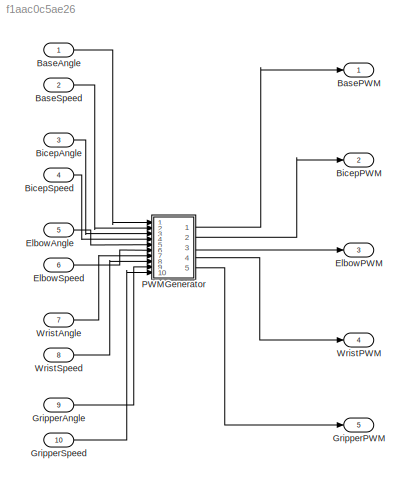
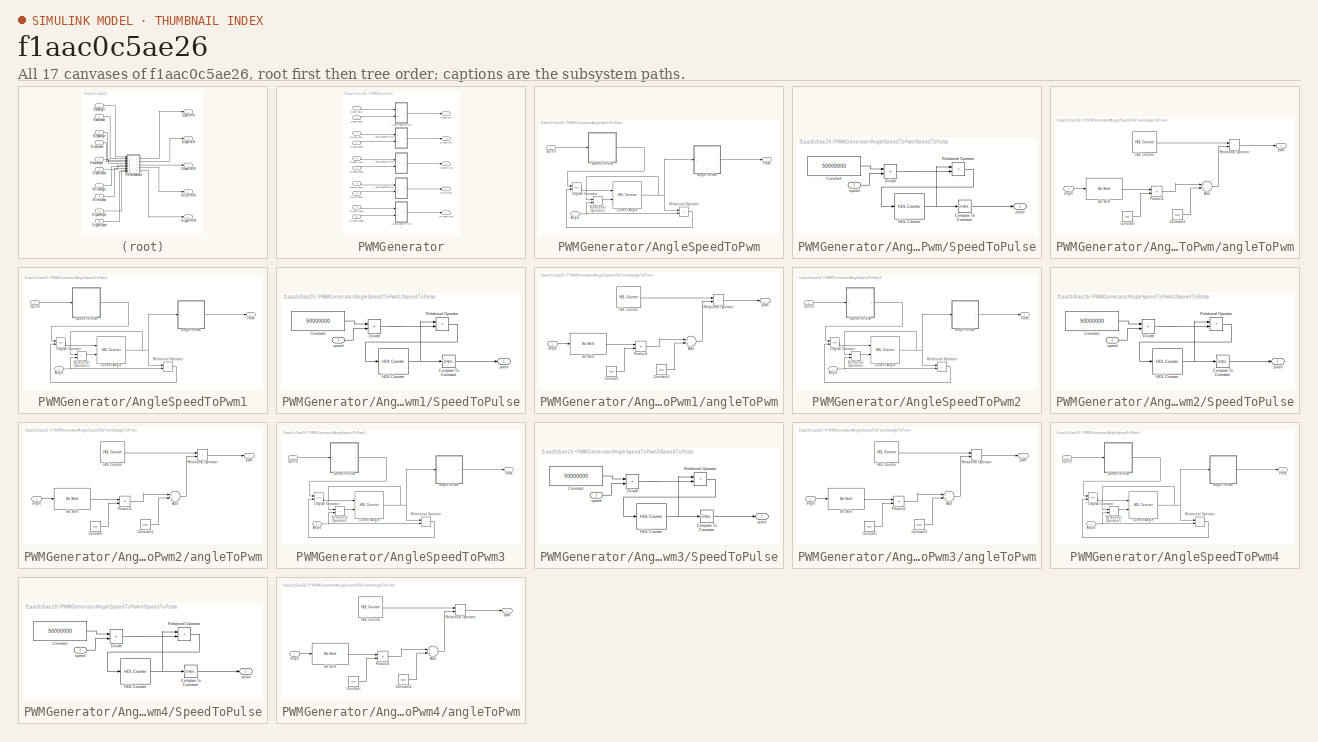
[diagram: thumbnail index - all 17 canvases of the model, root first then tree order]
MODEL slx_f1aac0c5ae26
KIND model
BLOCK [Inport] BaseAngle
  IconDisplay = Port number
  OutDataTypeStr = uint8
  SampleTime = 1
BLOCK [Outport] BasePWM
  IconDisplay = Port number
BLOCK [Inport] BaseSpeed
  IconDisplay = Port number
  OutDataTypeStr = uint8
  Port = 2
  SampleTime = 1
BLOCK [Inport] BicepAngle
  IconDisplay = Port number
  OutDataTypeStr = uint8
  Port = 3
  SampleTime = 1
BLOCK [Outport] BicepPWM
  IconDisplay = Port number
  Port = 2
BLOCK [Inport] BicepSpeed
  IconDisplay = Port number
  OutDataTypeStr = uint8
  Port = 4
  SampleTime = 1
BLOCK [Inport] ElbowAngle
  IconDisplay = Port number
  OutDataTypeStr = uint8
  Port = 5
  SampleTime = 1
BLOCK [Outport] ElbowPWM
  IconDisplay = Port number
  Port = 3
BLOCK [Inport] ElbowSpeed
  IconDisplay = Port number
  OutDataTypeStr = uint8
  Port = 6
  SampleTime = 1
BLOCK [Inport] GripperAngle
  IconDisplay = Port number
  OutDataTypeStr = uint8
  Port = 9
  SampleTime = 1
BLOCK [Outport] GripperPWM
  IconDisplay = Port number
  Port = 5
BLOCK [Inport] GripperSpeed
  IconDisplay = Port number
  OutDataTypeStr = uint8
  Port = 10
  SampleTime = 1
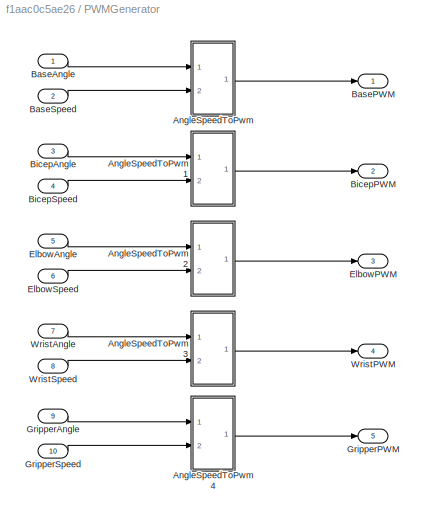
BLOCK [SubSystem] PWMGenerator
  Ports = [10, 5]
  RequestExecContextInheritance = off
  SystemSampleTime = 1
  TreatAsAtomicUnit = on
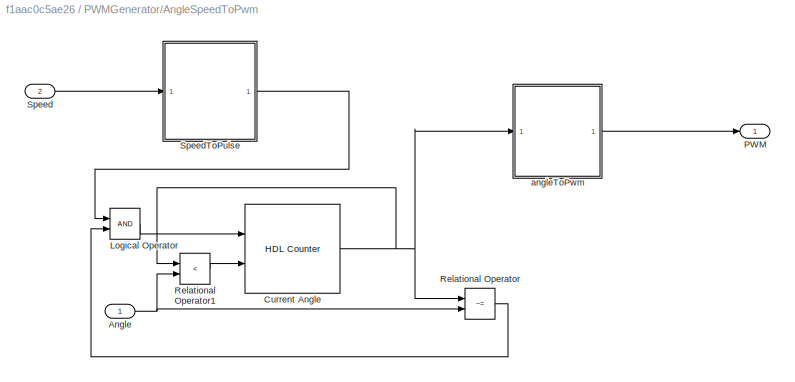
BLOCK [SubSystem] PWMGenerator/AngleSpeedToPwm
  Ports = [2, 1]
  RequestExecContextInheritance = off
BLOCK [Inport] PWMGenerator/AngleSpeedToPwm/Angle
  IconDisplay = Port number
  OutDataTypeStr = uint8
  SampleTime = 1
BLOCK [Reference] PWMGenerator/AngleSpeedToPwm/Current Angle  REF=hdlsllib/HDL Operations/HDL Counter
  CountDataType = Unsigned
  CountDirPort = on
  CountEnbPort = on
  CountFracLen = 0
  CountFrom = 0
  CountFromType = Specify
  CountInit = 90
  CountLoadPort = off
  CountMax = 180
  CountResetPort = off
  CountSampTime = 1
  CountStep = 1
  CountType = Count limited
  CountWordLen = 8
  Ports = [2, 1]
  SourceBlock = hdlsllib/HDL Operations/HDL Counter
  SourceType = HDL Counter
BLOCK [Logic] PWMGenerator/AngleSpeedToPwm/Logical Operator
  AllPortsSameDT = off
  OutDataTypeStr = boolean
  Ports = [2, 1]
  SampleTime = 1
BLOCK [Outport] PWMGenerator/AngleSpeedToPwm/PWM
  IconDisplay = Port number
  OutDataTypeStr = boolean
  SampleTime = 1
BLOCK [RelationalOperator] PWMGenerator/AngleSpeedToPwm/Relational Operator
  InputSameDT = off
  Operator = ~=
  OutDataTypeStr = boolean
  Ports = [2, 1]
  SampleTime = 1
BLOCK [RelationalOperator] PWMGenerator/AngleSpeedToPwm/Relational Operator1
  InputSameDT = off
  Operator = <
  OutDataTypeStr = boolean
  Ports = [2, 1]
  SampleTime = 1
BLOCK [Inport] PWMGenerator/AngleSpeedToPwm/Speed
  IconDisplay = Port number
  OutDataTypeStr = uint8
  Port = 2
  SampleTime = 1
BLOCK [SubSystem] PWMGenerator/AngleSpeedToPwm/SpeedToPulse
  Ports = [1, 1]
  RequestExecContextInheritance = off
BLOCK [Reference] PWMGenerator/AngleSpeedToPwm/SpeedToPulse/Compare To Constant  REF=simulink/Logic and Bit
Operations/Compare
To Constant
  OutDataTypeStr = boolean
  Ports = [1, 1]
  SourceBlock = simulink/Logic and Bit\nOperations/Compare\nTo Constant
  SourceType = Compare To Constant
  ZeroCross = on
  const = 0
  relop = ==
BLOCK [Constant] PWMGenerator/AngleSpeedToPwm/SpeedToPulse/Constant
  OutDataTypeStr = uint32
  SampleTime = 1
  Value = 50000000
BLOCK [Product] PWMGenerator/AngleSpeedToPwm/SpeedToPulse/Divide
  InputSameDT = off
  Inputs = */
  OutDataTypeStr = Inherit: Inherit via internal rule
  Ports = [2, 1]
  SampleTime = 1
BLOCK [Reference] PWMGenerator/AngleSpeedToPwm/SpeedToPulse/HDL Counter  REF=hdlsllib/HDL Operations/HDL Counter
  CountDataType = Unsigned
  CountDirPort = off
  CountEnbPort = off
  CountFracLen = 0
  CountFrom = 0
  CountFromType = Initial value
  CountInit = 0
  CountLoadPort = off
  CountMax = 50000000
  CountResetPort = on
  CountSampTime = 1
  CountStep = 1
  CountType = Count limited
  CountWordLen = 32
  Ports = [1, 1]
  SourceBlock = hdlsllib/HDL Operations/HDL Counter
  SourceType = HDL Counter
BLOCK [RelationalOperator] PWMGenerator/AngleSpeedToPwm/SpeedToPulse/Relational Operator
  InputSameDT = off
  Operator = >
  OutDataTypeStr = boolean
  Ports = [2, 1]
  SampleTime = 1
BLOCK [Outport] PWMGenerator/AngleSpeedToPwm/SpeedToPulse/pulse
  IconDisplay = Port number
  SampleTime = 1
BLOCK [Inport] PWMGenerator/AngleSpeedToPwm/SpeedToPulse/speed
  IconDisplay = Port number
  OutDataTypeStr = uint8
  SampleTime = 1
BLOCK [SubSystem] PWMGenerator/AngleSpeedToPwm/angleToPwm
  Ports = [1, 1]
  RequestExecContextInheritance = off
BLOCK [Sum] PWMGenerator/AngleSpeedToPwm/angleToPwm/Add
  InputSameDT = off
  OutDataTypeStr = uint32
  Ports = [2, 1]
  RndMeth = Zero
  SampleTime = 1
BLOCK [Reference] PWMGenerator/AngleSpeedToPwm/angleToPwm/Bit Shift  REF=hdlsllib/HDL Operations/Bit Shift
  N = 1
  Ports = [1, 1]
  SourceBlock = hdlsllib/HDL Operations/Bit Shift
  SourceType = Bit Shift
  mode = Shift Right Logical
BLOCK [Constant] PWMGenerator/AngleSpeedToPwm/angleToPwm/Constant
  OutDataTypeStr = uint32
  SampleTime = 1
  Value = 1000
BLOCK [Constant] PWMGenerator/AngleSpeedToPwm/angleToPwm/Constant1
  OutDataTypeStr = uint32
  SampleTime = 1
  Value = 30000
BLOCK [Reference] PWMGenerator/AngleSpeedToPwm/angleToPwm/HDL Counter  REF=hdlsllib/HDL Operations/HDL Counter
  CountDataType = Unsigned
  CountDirPort = off
  CountEnbPort = off
  CountFracLen = 0
  CountFrom = 0
  CountFromType = Initial value
  CountInit = 0
  CountLoadPort = off
  CountMax = 1000000
  CountResetPort = off
  CountSampTime = 1
  CountStep = 1
  CountType = Count limited
  CountWordLen = 32
  Ports = [0, 1]
  SourceBlock = hdlsllib/HDL Operations/HDL Counter
  SourceType = HDL Counter
BLOCK [Product] PWMGenerator/AngleSpeedToPwm/angleToPwm/Product1
  InputSameDT = off
  OutDataTypeStr = uint32
  Ports = [2, 1]
  SampleTime = 1
BLOCK [RelationalOperator] PWMGenerator/AngleSpeedToPwm/angleToPwm/Relational Operator
  InputSameDT = off
  Operator = <
  OutDataTypeStr = boolean
  Ports = [2, 1]
  SampleTime = 1
BLOCK [Inport] PWMGenerator/AngleSpeedToPwm/angleToPwm/angle
  IconDisplay = Port number
BLOCK [Outport] PWMGenerator/AngleSpeedToPwm/angleToPwm/pwm
  IconDisplay = Port number
  OutDataTypeStr = boolean
  SampleTime = 1
BLOCK [SubSystem] PWMGenerator/AngleSpeedToPwm1
  Ports = [2, 1]
  RequestExecContextInheritance = off
BLOCK [Inport] PWMGenerator/AngleSpeedToPwm1/Angle
  IconDisplay = Port number
  OutDataTypeStr = uint8
  SampleTime = 1
BLOCK [Reference] PWMGenerator/AngleSpeedToPwm1/Current Angle  REF=hdlsllib/HDL Operations/HDL Counter
  CountDataType = Unsigned
  CountDirPort = on
  CountEnbPort = on
  CountFracLen = 0
  CountFrom = 0
  CountFromType = Specify
  CountInit = 90
  CountLoadPort = off
  CountMax = 180
  CountResetPort = off
  CountSampTime = 1
  CountStep = 1
  CountType = Count limited
  CountWordLen = 8
  Ports = [2, 1]
  SourceBlock = hdlsllib/HDL Operations/HDL Counter
  SourceType = HDL Counter
BLOCK [Logic] PWMGenerator/AngleSpeedToPwm1/Logical Operator
  AllPortsSameDT = off
  OutDataTypeStr = boolean
  Ports = [2, 1]
  SampleTime = 1
BLOCK [Outport] PWMGenerator/AngleSpeedToPwm1/PWM
  IconDisplay = Port number
  OutDataTypeStr = boolean
  SampleTime = 1
BLOCK [RelationalOperator] PWMGenerator/AngleSpeedToPwm1/Relational Operator
  InputSameDT = off
  Operator = ~=
  OutDataTypeStr = boolean
  Ports = [2, 1]
  SampleTime = 1
BLOCK [RelationalOperator] PWMGenerator/AngleSpeedToPwm1/Relational Operator1
  InputSameDT = off
  Operator = <
  OutDataTypeStr = boolean
  Ports = [2, 1]
  SampleTime = 1
BLOCK [Inport] PWMGenerator/AngleSpeedToPwm1/Speed
  IconDisplay = Port number
  OutDataTypeStr = uint8
  Port = 2
  SampleTime = 1
BLOCK [SubSystem] PWMGenerator/AngleSpeedToPwm1/SpeedToPulse
  Ports = [1, 1]
  RequestExecContextInheritance = off
BLOCK [Reference] PWMGenerator/AngleSpeedToPwm1/SpeedToPulse/Compare To Constant  REF=simulink/Logic and Bit
Operations/Compare
To Constant
  OutDataTypeStr = boolean
  Ports = [1, 1]
  SourceBlock = simulink/Logic and Bit\nOperations/Compare\nTo Constant
  SourceType = Compare To Constant
  ZeroCross = on
  const = 0
  relop = ==
BLOCK [Constant] PWMGenerator/AngleSpeedToPwm1/SpeedToPulse/Constant
  OutDataTypeStr = uint32
  SampleTime = 1
  Value = 50000000
BLOCK [Product] PWMGenerator/AngleSpeedToPwm1/SpeedToPulse/Divide
  InputSameDT = off
  Inputs = */
  OutDataTypeStr = Inherit: Inherit via internal rule
  Ports = [2, 1]
  SampleTime = 1
BLOCK [Reference] PWMGenerator/AngleSpeedToPwm1/SpeedToPulse/HDL Counter  REF=hdlsllib/HDL Operations/HDL Counter
  CountDataType = Unsigned
  CountDirPort = off
  CountEnbPort = off
  CountFracLen = 0
  CountFrom = 0
  CountFromType = Initial value
  CountInit = 0
  CountLoadPort = off
  CountMax = 50000000
  CountResetPort = on
  CountSampTime = 1
  CountStep = 1
  CountType = Count limited
  CountWordLen = 32
  Ports = [1, 1]
  SourceBlock = hdlsllib/HDL Operations/HDL Counter
  SourceType = HDL Counter
BLOCK [RelationalOperator] PWMGenerator/AngleSpeedToPwm1/SpeedToPulse/Relational Operator
  InputSameDT = off
  Operator = >
  OutDataTypeStr = boolean
  Ports = [2, 1]
  SampleTime = 1
BLOCK [Outport] PWMGenerator/AngleSpeedToPwm1/SpeedToPulse/pulse
  IconDisplay = Port number
  SampleTime = 1
BLOCK [Inport] PWMGenerator/AngleSpeedToPwm1/SpeedToPulse/speed
  IconDisplay = Port number
  OutDataTypeStr = uint8
  SampleTime = 1
BLOCK [SubSystem] PWMGenerator/AngleSpeedToPwm1/angleToPwm
  Ports = [1, 1]
  RequestExecContextInheritance = off
BLOCK [Sum] PWMGenerator/AngleSpeedToPwm1/angleToPwm/Add
  InputSameDT = off
  OutDataTypeStr = uint32
  Ports = [2, 1]
  RndMeth = Zero
  SampleTime = 1
BLOCK [Reference] PWMGenerator/AngleSpeedToPwm1/angleToPwm/Bit Shift  REF=hdlsllib/HDL Operations/Bit Shift
  N = 1
  Ports = [1, 1]
  SourceBlock = hdlsllib/HDL Operations/Bit Shift
  SourceType = Bit Shift
  mode = Shift Right Logical
BLOCK [Constant] PWMGenerator/AngleSpeedToPwm1/angleToPwm/Constant
  OutDataTypeStr = uint32
  SampleTime = 1
  Value = 1000
BLOCK [Constant] PWMGenerator/AngleSpeedToPwm1/angleToPwm/Constant1
  OutDataTypeStr = uint32
  SampleTime = 1
  Value = 30000
BLOCK [Reference] PWMGenerator/AngleSpeedToPwm1/angleToPwm/HDL Counter  REF=hdlsllib/HDL Operations/HDL Counter
  CountDataType = Unsigned
  CountDirPort = off
  CountEnbPort = off
  CountFracLen = 0
  CountFrom = 0
  CountFromType = Initial value
  CountInit = 0
  CountLoadPort = off
  CountMax = 1000000
  CountResetPort = off
  CountSampTime = 1
  CountStep = 1
  CountType = Count limited
  CountWordLen = 32
  Ports = [0, 1]
  SourceBlock = hdlsllib/HDL Operations/HDL Counter
  SourceType = HDL Counter
BLOCK [Product] PWMGenerator/AngleSpeedToPwm1/angleToPwm/Product1
  InputSameDT = off
  OutDataTypeStr = uint32
  Ports = [2, 1]
  SampleTime = 1
BLOCK [RelationalOperator] PWMGenerator/AngleSpeedToPwm1/angleToPwm/Relational Operator
  InputSameDT = off
  Operator = <
  OutDataTypeStr = boolean
  Ports = [2, 1]
  SampleTime = 1
BLOCK [Inport] PWMGenerator/AngleSpeedToPwm1/angleToPwm/angle
  IconDisplay = Port number
BLOCK [Outport] PWMGenerator/AngleSpeedToPwm1/angleToPwm/pwm
  IconDisplay = Port number
  OutDataTypeStr = boolean
  SampleTime = 1
BLOCK [SubSystem] PWMGenerator/AngleSpeedToPwm2
  Ports = [2, 1]
  RequestExecContextInheritance = off
BLOCK [Inport] PWMGenerator/AngleSpeedToPwm2/Angle
  IconDisplay = Port number
  OutDataTypeStr = uint8
  SampleTime = 1
BLOCK [Reference] PWMGenerator/AngleSpeedToPwm2/Current Angle  REF=hdlsllib/HDL Operations/HDL Counter
  CountDataType = Unsigned
  CountDirPort = on
  CountEnbPort = on
  CountFracLen = 0
  CountFrom = 0
  CountFromType = Specify
  CountInit = 90
  CountLoadPort = off
  CountMax = 180
  CountResetPort = off
  CountSampTime = 1
  CountStep = 1
  CountType = Count limited
  CountWordLen = 8
  Ports = [2, 1]
  SourceBlock = hdlsllib/HDL Operations/HDL Counter
  SourceType = HDL Counter
BLOCK [Logic] PWMGenerator/AngleSpeedToPwm2/Logical Operator
  AllPortsSameDT = off
  OutDataTypeStr = boolean
  Ports = [2, 1]
  SampleTime = 1
BLOCK [Outport] PWMGenerator/AngleSpeedToPwm2/PWM
  IconDisplay = Port number
  OutDataTypeStr = boolean
  SampleTime = 1
BLOCK [RelationalOperator] PWMGenerator/AngleSpeedToPwm2/Relational Operator
  InputSameDT = off
  Operator = ~=
  OutDataTypeStr = boolean
  Ports = [2, 1]
  SampleTime = 1
BLOCK [RelationalOperator] PWMGenerator/AngleSpeedToPwm2/Relational Operator1
  InputSameDT = off
  Operator = <
  OutDataTypeStr = boolean
  Ports = [2, 1]
  SampleTime = 1
BLOCK [Inport] PWMGenerator/AngleSpeedToPwm2/Speed
  IconDisplay = Port number
  OutDataTypeStr = uint8
  Port = 2
  SampleTime = 1
BLOCK [SubSystem] PWMGenerator/AngleSpeedToPwm2/SpeedToPulse
  Ports = [1, 1]
  RequestExecContextInheritance = off
BLOCK [Reference] PWMGenerator/AngleSpeedToPwm2/SpeedToPulse/Compare To Constant  REF=simulink/Logic and Bit
Operations/Compare
To Constant
  OutDataTypeStr = boolean
  Ports = [1, 1]
  SourceBlock = simulink/Logic and Bit\nOperations/Compare\nTo Constant
  SourceType = Compare To Constant
  ZeroCross = on
  const = 0
  relop = ==
BLOCK [Constant] PWMGenerator/AngleSpeedToPwm2/SpeedToPulse/Constant
  OutDataTypeStr = uint32
  SampleTime = 1
  Value = 50000000
BLOCK [Product] PWMGenerator/AngleSpeedToPwm2/SpeedToPulse/Divide
  InputSameDT = off
  Inputs = */
  OutDataTypeStr = Inherit: Inherit via internal rule
  Ports = [2, 1]
  SampleTime = 1
BLOCK [Reference] PWMGenerator/AngleSpeedToPwm2/SpeedToPulse/HDL Counter  REF=hdlsllib/HDL Operations/HDL Counter
  CountDataType = Unsigned
  CountDirPort = off
  CountEnbPort = off
  CountFracLen = 0
  CountFrom = 0
  CountFromType = Initial value
  CountInit = 0
  CountLoadPort = off
  CountMax = 50000000
  CountResetPort = on
  CountSampTime = 1
  CountStep = 1
  CountType = Count limited
  CountWordLen = 32
  Ports = [1, 1]
  SourceBlock = hdlsllib/HDL Operations/HDL Counter
  SourceType = HDL Counter
BLOCK [RelationalOperator] PWMGenerator/AngleSpeedToPwm2/SpeedToPulse/Relational Operator
  InputSameDT = off
  Operator = >
  OutDataTypeStr = boolean
  Ports = [2, 1]
  SampleTime = 1
BLOCK [Outport] PWMGenerator/AngleSpeedToPwm2/SpeedToPulse/pulse
  IconDisplay = Port number
  SampleTime = 1
BLOCK [Inport] PWMGenerator/AngleSpeedToPwm2/SpeedToPulse/speed
  IconDisplay = Port number
  OutDataTypeStr = uint8
  SampleTime = 1
BLOCK [SubSystem] PWMGenerator/AngleSpeedToPwm2/angleToPwm
  Ports = [1, 1]
  RequestExecContextInheritance = off
BLOCK [Sum] PWMGenerator/AngleSpeedToPwm2/angleToPwm/Add
  InputSameDT = off
  OutDataTypeStr = uint32
  Ports = [2, 1]
  RndMeth = Zero
  SampleTime = 1
BLOCK [Reference] PWMGenerator/AngleSpeedToPwm2/angleToPwm/Bit Shift  REF=hdlsllib/HDL Operations/Bit Shift
  N = 1
  Ports = [1, 1]
  SourceBlock = hdlsllib/HDL Operations/Bit Shift
  SourceType = Bit Shift
  mode = Shift Right Logical
BLOCK [Constant] PWMGenerator/AngleSpeedToPwm2/angleToPwm/Constant
  OutDataTypeStr = uint32
  SampleTime = 1
  Value = 1000
BLOCK [Constant] PWMGenerator/AngleSpeedToPwm2/angleToPwm/Constant1
  OutDataTypeStr = uint32
  SampleTime = 1
  Value = 30000
BLOCK [Reference] PWMGenerator/AngleSpeedToPwm2/angleToPwm/HDL Counter  REF=hdlsllib/HDL Operations/HDL Counter
  CountDataType = Unsigned
  CountDirPort = off
  CountEnbPort = off
  CountFracLen = 0
  CountFrom = 0
  CountFromType = Initial value
  CountInit = 0
  CountLoadPort = off
  CountMax = 1000000
  CountResetPort = off
  CountSampTime = 1
  CountStep = 1
  CountType = Count limited
  CountWordLen = 32
  Ports = [0, 1]
  SourceBlock = hdlsllib/HDL Operations/HDL Counter
  SourceType = HDL Counter
BLOCK [Product] PWMGenerator/AngleSpeedToPwm2/angleToPwm/Product1
  InputSameDT = off
  OutDataTypeStr = uint32
  Ports = [2, 1]
  SampleTime = 1
BLOCK [RelationalOperator] PWMGenerator/AngleSpeedToPwm2/angleToPwm/Relational Operator
  InputSameDT = off
  Operator = <
  OutDataTypeStr = boolean
  Ports = [2, 1]
  SampleTime = 1
BLOCK [Inport] PWMGenerator/AngleSpeedToPwm2/angleToPwm/angle
  IconDisplay = Port number
BLOCK [Outport] PWMGenerator/AngleSpeedToPwm2/angleToPwm/pwm
  IconDisplay = Port number
  OutDataTypeStr = boolean
  SampleTime = 1
BLOCK [SubSystem] PWMGenerator/AngleSpeedToPwm3
  Ports = [2, 1]
  RequestExecContextInheritance = off
BLOCK [Inport] PWMGenerator/AngleSpeedToPwm3/Angle
  IconDisplay = Port number
  OutDataTypeStr = uint8
  SampleTime = 1
BLOCK [Reference] PWMGenerator/AngleSpeedToPwm3/Current Angle  REF=hdlsllib/HDL Operations/HDL Counter
  CountDataType = Unsigned
  CountDirPort = on
  CountEnbPort = on
  CountFracLen = 0
  CountFrom = 0
  CountFromType = Specify
  CountInit = 90
  CountLoadPort = off
  CountMax = 180
  CountResetPort = off
  CountSampTime = 1
  CountStep = 1
  CountType = Count limited
  CountWordLen = 8
  Ports = [2, 1]
  SourceBlock = hdlsllib/HDL Operations/HDL Counter
  SourceType = HDL Counter
BLOCK [Logic] PWMGenerator/AngleSpeedToPwm3/Logical Operator
  AllPortsSameDT = off
  OutDataTypeStr = boolean
  Ports = [2, 1]
  SampleTime = 1
BLOCK [Outport] PWMGenerator/AngleSpeedToPwm3/PWM
  IconDisplay = Port number
  OutDataTypeStr = boolean
  SampleTime = 1
BLOCK [RelationalOperator] PWMGenerator/AngleSpeedToPwm3/Relational Operator
  InputSameDT = off
  Operator = ~=
  OutDataTypeStr = boolean
  Ports = [2, 1]
  SampleTime = 1
BLOCK [RelationalOperator] PWMGenerator/AngleSpeedToPwm3/Relational Operator1
  InputSameDT = off
  Operator = <
  OutDataTypeStr = boolean
  Ports = [2, 1]
  SampleTime = 1
BLOCK [Inport] PWMGenerator/AngleSpeedToPwm3/Speed
  IconDisplay = Port number
  OutDataTypeStr = uint8
  Port = 2
  SampleTime = 1
BLOCK [SubSystem] PWMGenerator/AngleSpeedToPwm3/SpeedToPulse
  Ports = [1, 1]
  RequestExecContextInheritance = off
BLOCK [Reference] PWMGenerator/AngleSpeedToPwm3/SpeedToPulse/Compare To Constant  REF=simulink/Logic and Bit
Operations/Compare
To Constant
  OutDataTypeStr = boolean
  Ports = [1, 1]
  SourceBlock = simulink/Logic and Bit\nOperations/Compare\nTo Constant
  SourceType = Compare To Constant
  ZeroCross = on
  const = 0
  relop = ==
BLOCK [Constant] PWMGenerator/AngleSpeedToPwm3/SpeedToPulse/Constant
  OutDataTypeStr = uint32
  SampleTime = 1
  Value = 50000000
BLOCK [Product] PWMGenerator/AngleSpeedToPwm3/SpeedToPulse/Divide
  InputSameDT = off
  Inputs = */
  OutDataTypeStr = Inherit: Inherit via internal rule
  Ports = [2, 1]
  SampleTime = 1
BLOCK [Reference] PWMGenerator/AngleSpeedToPwm3/SpeedToPulse/HDL Counter  REF=hdlsllib/HDL Operations/HDL Counter
  CountDataType = Unsigned
  CountDirPort = off
  CountEnbPort = off
  CountFracLen = 0
  CountFrom = 0
  CountFromType = Initial value
  CountInit = 0
  CountLoadPort = off
  CountMax = 50000000
  CountResetPort = on
  CountSampTime = 1
  CountStep = 1
  CountType = Count limited
  CountWordLen = 32
  Ports = [1, 1]
  SourceBlock = hdlsllib/HDL Operations/HDL Counter
  SourceType = HDL Counter
BLOCK [RelationalOperator] PWMGenerator/AngleSpeedToPwm3/SpeedToPulse/Relational Operator
  InputSameDT = off
  Operator = >
  OutDataTypeStr = boolean
  Ports = [2, 1]
  SampleTime = 1
BLOCK [Outport] PWMGenerator/AngleSpeedToPwm3/SpeedToPulse/pulse
  IconDisplay = Port number
  SampleTime = 1
BLOCK [Inport] PWMGenerator/AngleSpeedToPwm3/SpeedToPulse/speed
  IconDisplay = Port number
  OutDataTypeStr = uint8
  SampleTime = 1
BLOCK [SubSystem] PWMGenerator/AngleSpeedToPwm3/angleToPwm
  Ports = [1, 1]
  RequestExecContextInheritance = off
BLOCK [Sum] PWMGenerator/AngleSpeedToPwm3/angleToPwm/Add
  InputSameDT = off
  OutDataTypeStr = uint32
  Ports = [2, 1]
  RndMeth = Zero
  SampleTime = 1
BLOCK [Reference] PWMGenerator/AngleSpeedToPwm3/angleToPwm/Bit Shift  REF=hdlsllib/HDL Operations/Bit Shift
  N = 1
  Ports = [1, 1]
  SourceBlock = hdlsllib/HDL Operations/Bit Shift
  SourceType = Bit Shift
  mode = Shift Right Logical
BLOCK [Constant] PWMGenerator/AngleSpeedToPwm3/angleToPwm/Constant
  OutDataTypeStr = uint32
  SampleTime = 1
  Value = 1000
BLOCK [Constant] PWMGenerator/AngleSpeedToPwm3/angleToPwm/Constant1
  OutDataTypeStr = uint32
  SampleTime = 1
  Value = 30000
BLOCK [Reference] PWMGenerator/AngleSpeedToPwm3/angleToPwm/HDL Counter  REF=hdlsllib/HDL Operations/HDL Counter
  CountDataType = Unsigned
  CountDirPort = off
  CountEnbPort = off
  CountFracLen = 0
  CountFrom = 0
  CountFromType = Initial value
  CountInit = 0
  CountLoadPort = off
  CountMax = 1000000
  CountResetPort = off
  CountSampTime = 1
  CountStep = 1
  CountType = Count limited
  CountWordLen = 32
  Ports = [0, 1]
  SourceBlock = hdlsllib/HDL Operations/HDL Counter
  SourceType = HDL Counter
BLOCK [Product] PWMGenerator/AngleSpeedToPwm3/angleToPwm/Product1
  InputSameDT = off
  OutDataTypeStr = uint32
  Ports = [2, 1]
  SampleTime = 1
BLOCK [RelationalOperator] PWMGenerator/AngleSpeedToPwm3/angleToPwm/Relational Operator
  InputSameDT = off
  Operator = <
  OutDataTypeStr = boolean
  Ports = [2, 1]
  SampleTime = 1
BLOCK [Inport] PWMGenerator/AngleSpeedToPwm3/angleToPwm/angle
  IconDisplay = Port number
BLOCK [Outport] PWMGenerator/AngleSpeedToPwm3/angleToPwm/pwm
  IconDisplay = Port number
  OutDataTypeStr = boolean
  SampleTime = 1
BLOCK [SubSystem] PWMGenerator/AngleSpeedToPwm4
  Ports = [2, 1]
  RequestExecContextInheritance = off
BLOCK [Inport] PWMGenerator/AngleSpeedToPwm4/Angle
  IconDisplay = Port number
  OutDataTypeStr = uint8
  SampleTime = 1
BLOCK [Reference] PWMGenerator/AngleSpeedToPwm4/Current Angle  REF=hdlsllib/HDL Operations/HDL Counter
  CountDataType = Unsigned
  CountDirPort = on
  CountEnbPort = on
  CountFracLen = 0
  CountFrom = 0
  CountFromType = Specify
  CountInit = 90
  CountLoadPort = off
  CountMax = 180
  CountResetPort = off
  CountSampTime = 1
  CountStep = 1
  CountType = Count limited
  CountWordLen = 8
  Ports = [2, 1]
  SourceBlock = hdlsllib/HDL Operations/HDL Counter
  SourceType = HDL Counter
BLOCK [Logic] PWMGenerator/AngleSpeedToPwm4/Logical Operator
  AllPortsSameDT = off
  OutDataTypeStr = boolean
  Ports = [2, 1]
  SampleTime = 1
BLOCK [Outport] PWMGenerator/AngleSpeedToPwm4/PWM
  IconDisplay = Port number
  OutDataTypeStr = boolean
  SampleTime = 1
BLOCK [RelationalOperator] PWMGenerator/AngleSpeedToPwm4/Relational Operator
  InputSameDT = off
  Operator = ~=
  OutDataTypeStr = boolean
  Ports = [2, 1]
  SampleTime = 1
BLOCK [RelationalOperator] PWMGenerator/AngleSpeedToPwm4/Relational Operator1
  InputSameDT = off
  Operator = <
  OutDataTypeStr = boolean
  Ports = [2, 1]
  SampleTime = 1
BLOCK [Inport] PWMGenerator/AngleSpeedToPwm4/Speed
  IconDisplay = Port number
  OutDataTypeStr = uint8
  Port = 2
  SampleTime = 1
BLOCK [SubSystem] PWMGenerator/AngleSpeedToPwm4/SpeedToPulse
  Ports = [1, 1]
  RequestExecContextInheritance = off
BLOCK [Reference] PWMGenerator/AngleSpeedToPwm4/SpeedToPulse/Compare To Constant  REF=simulink/Logic and Bit
Operations/Compare
To Constant
  OutDataTypeStr = boolean
  Ports = [1, 1]
  SourceBlock = simulink/Logic and Bit\nOperations/Compare\nTo Constant
  SourceType = Compare To Constant
  ZeroCross = on
  const = 0
  relop = ==
BLOCK [Constant] PWMGenerator/AngleSpeedToPwm4/SpeedToPulse/Constant
  OutDataTypeStr = uint32
  SampleTime = 1
  Value = 50000000
BLOCK [Product] PWMGenerator/AngleSpeedToPwm4/SpeedToPulse/Divide
  InputSameDT = off
  Inputs = */
  OutDataTypeStr = Inherit: Inherit via internal rule
  Ports = [2, 1]
  SampleTime = 1
BLOCK [Reference] PWMGenerator/AngleSpeedToPwm4/SpeedToPulse/HDL Counter  REF=hdlsllib/HDL Operations/HDL Counter
  CountDataType = Unsigned
  CountDirPort = off
  CountEnbPort = off
  CountFracLen = 0
  CountFrom = 0
  CountFromType = Initial value
  CountInit = 0
  CountLoadPort = off
  CountMax = 50000000
  CountResetPort = on
  CountSampTime = 1
  CountStep = 1
  CountType = Count limited
  CountWordLen = 32
  Ports = [1, 1]
  SourceBlock = hdlsllib/HDL Operations/HDL Counter
  SourceType = HDL Counter
BLOCK [RelationalOperator] PWMGenerator/AngleSpeedToPwm4/SpeedToPulse/Relational Operator
  InputSameDT = off
  Operator = >
  OutDataTypeStr = boolean
  Ports = [2, 1]
  SampleTime = 1
BLOCK [Outport] PWMGenerator/AngleSpeedToPwm4/SpeedToPulse/pulse
  IconDisplay = Port number
  SampleTime = 1
BLOCK [Inport] PWMGenerator/AngleSpeedToPwm4/SpeedToPulse/speed
  IconDisplay = Port number
  OutDataTypeStr = uint8
  SampleTime = 1
BLOCK [SubSystem] PWMGenerator/AngleSpeedToPwm4/angleToPwm
  Ports = [1, 1]
  RequestExecContextInheritance = off
BLOCK [Sum] PWMGenerator/AngleSpeedToPwm4/angleToPwm/Add
  InputSameDT = off
  OutDataTypeStr = uint32
  Ports = [2, 1]
  RndMeth = Zero
  SampleTime = 1
BLOCK [Reference] PWMGenerator/AngleSpeedToPwm4/angleToPwm/Bit Shift  REF=hdlsllib/HDL Operations/Bit Shift
  N = 1
  Ports = [1, 1]
  SourceBlock = hdlsllib/HDL Operations/Bit Shift
  SourceType = Bit Shift
  mode = Shift Right Logical
BLOCK [Constant] PWMGenerator/AngleSpeedToPwm4/angleToPwm/Constant
  OutDataTypeStr = uint32
  SampleTime = 1
  Value = 1000
BLOCK [Constant] PWMGenerator/AngleSpeedToPwm4/angleToPwm/Constant1
  OutDataTypeStr = uint32
  SampleTime = 1
  Value = 30000
BLOCK [Reference] PWMGenerator/AngleSpeedToPwm4/angleToPwm/HDL Counter  REF=hdlsllib/HDL Operations/HDL Counter
  CountDataType = Unsigned
  CountDirPort = off
  CountEnbPort = off
  CountFracLen = 0
  CountFrom = 0
  CountFromType = Initial value
  CountInit = 0
  CountLoadPort = off
  CountMax = 1000000
  CountResetPort = off
  CountSampTime = 1
  CountStep = 1
  CountType = Count limited
  CountWordLen = 32
  Ports = [0, 1]
  SourceBlock = hdlsllib/HDL Operations/HDL Counter
  SourceType = HDL Counter
BLOCK [Product] PWMGenerator/AngleSpeedToPwm4/angleToPwm/Product1
  InputSameDT = off
  OutDataTypeStr = uint32
  Ports = [2, 1]
  SampleTime = 1
BLOCK [RelationalOperator] PWMGenerator/AngleSpeedToPwm4/angleToPwm/Relational Operator
  InputSameDT = off
  Operator = <
  OutDataTypeStr = boolean
  Ports = [2, 1]
  SampleTime = 1
BLOCK [Inport] PWMGenerator/AngleSpeedToPwm4/angleToPwm/angle
  IconDisplay = Port number
BLOCK [Outport] PWMGenerator/AngleSpeedToPwm4/angleToPwm/pwm
  IconDisplay = Port number
  OutDataTypeStr = boolean
  SampleTime = 1
BLOCK [Inport] PWMGenerator/BaseAngle
  IconDisplay = Port number
  OutDataTypeStr = uint8
  SampleTime = 1
BLOCK [Outport] PWMGenerator/BasePWM
  IconDisplay = Port number
BLOCK [Inport] PWMGenerator/BaseSpeed
  IconDisplay = Port number
  OutDataTypeStr = uint8
  Port = 2
  SampleTime = 1
BLOCK [Inport] PWMGenerator/BicepAngle
  IconDisplay = Port number
  OutDataTypeStr = uint8
  Port = 3
  SampleTime = 1
BLOCK [Outport] PWMGenerator/BicepPWM
  IconDisplay = Port number
  Port = 2
BLOCK [Inport] PWMGenerator/BicepSpeed
  IconDisplay = Port number
  OutDataTypeStr = uint8
  Port = 4
  SampleTime = 1
BLOCK [Inport] PWMGenerator/ElbowAngle
  IconDisplay = Port number
  OutDataTypeStr = uint8
  Port = 5
  SampleTime = 1
BLOCK [Outport] PWMGenerator/ElbowPWM
  IconDisplay = Port number
  Port = 3
BLOCK [Inport] PWMGenerator/ElbowSpeed
  IconDisplay = Port number
  OutDataTypeStr = uint8
  Port = 6
  SampleTime = 1
BLOCK [Inport] PWMGenerator/GripperAngle
  IconDisplay = Port number
  OutDataTypeStr = uint8
  Port = 9
  SampleTime = 1
BLOCK [Outport] PWMGenerator/GripperPWM
  IconDisplay = Port number
  Port = 5
BLOCK [Inport] PWMGenerator/GripperSpeed
  IconDisplay = Port number
  OutDataTypeStr = uint8
  Port = 10
  SampleTime = 1
BLOCK [Inport] PWMGenerator/WristAngle
  IconDisplay = Port number
  OutDataTypeStr = uint8
  Port = 7
  SampleTime = 1
BLOCK [Outport] PWMGenerator/WristPWM
  IconDisplay = Port number
  Port = 4
BLOCK [Inport] PWMGenerator/WristSpeed
  IconDisplay = Port number
  OutDataTypeStr = uint8
  Port = 8
  SampleTime = 1
BLOCK [Inport] WristAngle
  IconDisplay = Port number
  OutDataTypeStr = uint8
  Port = 7
  SampleTime = 1
BLOCK [Outport] WristPWM
  IconDisplay = Port number
  Port = 4
BLOCK [Inport] WristSpeed
  IconDisplay = Port number
  OutDataTypeStr = uint8
  Port = 8
  SampleTime = 1
LINE BaseAngle:1 -> PWMGenerator:1
LINE BaseSpeed:1 -> PWMGenerator:2
LINE BicepAngle:1 -> PWMGenerator:3
LINE BicepSpeed:1 -> PWMGenerator:4
LINE ElbowAngle:1 -> PWMGenerator:5
LINE ElbowSpeed:1 -> PWMGenerator:6
LINE GripperAngle:1 -> PWMGenerator:9
LINE GripperSpeed:1 -> PWMGenerator:10
NET PWMGenerator/AngleSpeedToPwm/Angle:1 -> PWMGenerator/AngleSpeedToPwm/Relational Operator1:2, PWMGenerator/AngleSpeedToPwm/Relational Operator:2
NET PWMGenerator/AngleSpeedToPwm/Current Angle:1 -> PWMGenerator/AngleSpeedToPwm/Relational Operator1:1, PWMGenerator/AngleSpeedToPwm/Relational Operator:1, PWMGenerator/AngleSpeedToPwm/angleToPwm:1
LINE PWMGenerator/AngleSpeedToPwm/Logical Operator:1 -> PWMGenerator/AngleSpeedToPwm/Current Angle:1
LINE PWMGenerator/AngleSpeedToPwm/Relational Operator1:1 -> PWMGenerator/AngleSpeedToPwm/Current Angle:2
LINE PWMGenerator/AngleSpeedToPwm/Relational Operator:1 -> PWMGenerator/AngleSpeedToPwm/Logical Operator:2
LINE PWMGenerator/AngleSpeedToPwm/Speed:1 -> PWMGenerator/AngleSpeedToPwm/SpeedToPulse:1
LINE PWMGenerator/AngleSpeedToPwm/SpeedToPulse/Compare To Constant:1 -> PWMGenerator/AngleSpeedToPwm/SpeedToPulse/pulse:1
LINE PWMGenerator/AngleSpeedToPwm/SpeedToPulse/Constant:1 -> PWMGenerator/AngleSpeedToPwm/SpeedToPulse/Divide:1
LINE PWMGenerator/AngleSpeedToPwm/SpeedToPulse/Divide:1 -> PWMGenerator/AngleSpeedToPwm/SpeedToPulse/Relational Operator:2
NET PWMGenerator/AngleSpeedToPwm/SpeedToPulse/HDL Counter:1 -> PWMGenerator/AngleSpeedToPwm/SpeedToPulse/Compare To Constant:1, PWMGenerator/AngleSpeedToPwm/SpeedToPulse/Relational Operator:1
LINE PWMGenerator/AngleSpeedToPwm/SpeedToPulse/Relational Operator:1 -> PWMGenerator/AngleSpeedToPwm/SpeedToPulse/HDL Counter:1
LINE PWMGenerator/AngleSpeedToPwm/SpeedToPulse/speed:1 -> PWMGenerator/AngleSpeedToPwm/SpeedToPulse/Divide:2
LINE PWMGenerator/AngleSpeedToPwm/SpeedToPulse:1 -> PWMGenerator/AngleSpeedToPwm/Logical Operator:1
LINE PWMGenerator/AngleSpeedToPwm/angleToPwm/Add:1 -> PWMGenerator/AngleSpeedToPwm/angleToPwm/Relational Operator:2
LINE PWMGenerator/AngleSpeedToPwm/angleToPwm/Bit Shift:1 -> PWMGenerator/AngleSpeedToPwm/angleToPwm/Product1:1
LINE PWMGenerator/AngleSpeedToPwm/angleToPwm/Constant1:1 -> PWMGenerator/AngleSpeedToPwm/angleToPwm/Add:2
LINE PWMGenerator/AngleSpeedToPwm/angleToPwm/Constant:1 -> PWMGenerator/AngleSpeedToPwm/angleToPwm/Product1:2
LINE PWMGenerator/AngleSpeedToPwm/angleToPwm/HDL Counter:1 -> PWMGenerator/AngleSpeedToPwm/angleToPwm/Relational Operator:1
LINE PWMGenerator/AngleSpeedToPwm/angleToPwm/Product1:1 -> PWMGenerator/AngleSpeedToPwm/angleToPwm/Add:1
LINE PWMGenerator/AngleSpeedToPwm/angleToPwm/Relational Operator:1 -> PWMGenerator/AngleSpeedToPwm/angleToPwm/pwm:1
LINE PWMGenerator/AngleSpeedToPwm/angleToPwm/angle:1 -> PWMGenerator/AngleSpeedToPwm/angleToPwm/Bit Shift:1
LINE PWMGenerator/AngleSpeedToPwm/angleToPwm:1 -> PWMGenerator/AngleSpeedToPwm/PWM:1
NET PWMGenerator/AngleSpeedToPwm1/Angle:1 -> PWMGenerator/AngleSpeedToPwm1/Relational Operator1:2, PWMGenerator/AngleSpeedToPwm1/Relational Operator:2
NET PWMGenerator/AngleSpeedToPwm1/Current Angle:1 -> PWMGenerator/AngleSpeedToPwm1/Relational Operator1:1, PWMGenerator/AngleSpeedToPwm1/Relational Operator:1, PWMGenerator/AngleSpeedToPwm1/angleToPwm:1
LINE PWMGenerator/AngleSpeedToPwm1/Logical Operator:1 -> PWMGenerator/AngleSpeedToPwm1/Current Angle:1
LINE PWMGenerator/AngleSpeedToPwm1/Relational Operator1:1 -> PWMGenerator/AngleSpeedToPwm1/Current Angle:2
LINE PWMGenerator/AngleSpeedToPwm1/Relational Operator:1 -> PWMGenerator/AngleSpeedToPwm1/Logical Operator:2
LINE PWMGenerator/AngleSpeedToPwm1/Speed:1 -> PWMGenerator/AngleSpeedToPwm1/SpeedToPulse:1
LINE PWMGenerator/AngleSpeedToPwm1/SpeedToPulse/Compare To Constant:1 -> PWMGenerator/AngleSpeedToPwm1/SpeedToPulse/pulse:1
LINE PWMGenerator/AngleSpeedToPwm1/SpeedToPulse/Constant:1 -> PWMGenerator/AngleSpeedToPwm1/SpeedToPulse/Divide:1
LINE PWMGenerator/AngleSpeedToPwm1/SpeedToPulse/Divide:1 -> PWMGenerator/AngleSpeedToPwm1/SpeedToPulse/Relational Operator:2
NET PWMGenerator/AngleSpeedToPwm1/SpeedToPulse/HDL Counter:1 -> PWMGenerator/AngleSpeedToPwm1/SpeedToPulse/Compare To Constant:1, PWMGenerator/AngleSpeedToPwm1/SpeedToPulse/Relational Operator:1
LINE PWMGenerator/AngleSpeedToPwm1/SpeedToPulse/Relational Operator:1 -> PWMGenerator/AngleSpeedToPwm1/SpeedToPulse/HDL Counter:1
LINE PWMGenerator/AngleSpeedToPwm1/SpeedToPulse/speed:1 -> PWMGenerator/AngleSpeedToPwm1/SpeedToPulse/Divide:2
LINE PWMGenerator/AngleSpeedToPwm1/SpeedToPulse:1 -> PWMGenerator/AngleSpeedToPwm1/Logical Operator:1
LINE PWMGenerator/AngleSpeedToPwm1/angleToPwm/Add:1 -> PWMGenerator/AngleSpeedToPwm1/angleToPwm/Relational Operator:2
LINE PWMGenerator/AngleSpeedToPwm1/angleToPwm/Bit Shift:1 -> PWMGenerator/AngleSpeedToPwm1/angleToPwm/Product1:1
LINE PWMGenerator/AngleSpeedToPwm1/angleToPwm/Constant1:1 -> PWMGenerator/AngleSpeedToPwm1/angleToPwm/Add:2
LINE PWMGenerator/AngleSpeedToPwm1/angleToPwm/Constant:1 -> PWMGenerator/AngleSpeedToPwm1/angleToPwm/Product1:2
LINE PWMGenerator/AngleSpeedToPwm1/angleToPwm/HDL Counter:1 -> PWMGenerator/AngleSpeedToPwm1/angleToPwm/Relational Operator:1
LINE PWMGenerator/AngleSpeedToPwm1/angleToPwm/Product1:1 -> PWMGenerator/AngleSpeedToPwm1/angleToPwm/Add:1
LINE PWMGenerator/AngleSpeedToPwm1/angleToPwm/Relational Operator:1 -> PWMGenerator/AngleSpeedToPwm1/angleToPwm/pwm:1
LINE PWMGenerator/AngleSpeedToPwm1/angleToPwm/angle:1 -> PWMGenerator/AngleSpeedToPwm1/angleToPwm/Bit Shift:1
LINE PWMGenerator/AngleSpeedToPwm1/angleToPwm:1 -> PWMGenerator/AngleSpeedToPwm1/PWM:1
LINE PWMGenerator/AngleSpeedToPwm1:1 -> PWMGenerator/BicepPWM:1
NET PWMGenerator/AngleSpeedToPwm2/Angle:1 -> PWMGenerator/AngleSpeedToPwm2/Relational Operator1:2, PWMGenerator/AngleSpeedToPwm2/Relational Operator:2
NET PWMGenerator/AngleSpeedToPwm2/Current Angle:1 -> PWMGenerator/AngleSpeedToPwm2/Relational Operator1:1, PWMGenerator/AngleSpeedToPwm2/Relational Operator:1, PWMGenerator/AngleSpeedToPwm2/angleToPwm:1
LINE PWMGenerator/AngleSpeedToPwm2/Logical Operator:1 -> PWMGenerator/AngleSpeedToPwm2/Current Angle:1
LINE PWMGenerator/AngleSpeedToPwm2/Relational Operator1:1 -> PWMGenerator/AngleSpeedToPwm2/Current Angle:2
LINE PWMGenerator/AngleSpeedToPwm2/Relational Operator:1 -> PWMGenerator/AngleSpeedToPwm2/Logical Operator:2
LINE PWMGenerator/AngleSpeedToPwm2/Speed:1 -> PWMGenerator/AngleSpeedToPwm2/SpeedToPulse:1
LINE PWMGenerator/AngleSpeedToPwm2/SpeedToPulse/Compare To Constant:1 -> PWMGenerator/AngleSpeedToPwm2/SpeedToPulse/pulse:1
LINE PWMGenerator/AngleSpeedToPwm2/SpeedToPulse/Constant:1 -> PWMGenerator/AngleSpeedToPwm2/SpeedToPulse/Divide:1
LINE PWMGenerator/AngleSpeedToPwm2/SpeedToPulse/Divide:1 -> PWMGenerator/AngleSpeedToPwm2/SpeedToPulse/Relational Operator:2
NET PWMGenerator/AngleSpeedToPwm2/SpeedToPulse/HDL Counter:1 -> PWMGenerator/AngleSpeedToPwm2/SpeedToPulse/Compare To Constant:1, PWMGenerator/AngleSpeedToPwm2/SpeedToPulse/Relational Operator:1
LINE PWMGenerator/AngleSpeedToPwm2/SpeedToPulse/Relational Operator:1 -> PWMGenerator/AngleSpeedToPwm2/SpeedToPulse/HDL Counter:1
LINE PWMGenerator/AngleSpeedToPwm2/SpeedToPulse/speed:1 -> PWMGenerator/AngleSpeedToPwm2/SpeedToPulse/Divide:2
LINE PWMGenerator/AngleSpeedToPwm2/SpeedToPulse:1 -> PWMGenerator/AngleSpeedToPwm2/Logical Operator:1
LINE PWMGenerator/AngleSpeedToPwm2/angleToPwm/Add:1 -> PWMGenerator/AngleSpeedToPwm2/angleToPwm/Relational Operator:2
LINE PWMGenerator/AngleSpeedToPwm2/angleToPwm/Bit Shift:1 -> PWMGenerator/AngleSpeedToPwm2/angleToPwm/Product1:1
LINE PWMGenerator/AngleSpeedToPwm2/angleToPwm/Constant1:1 -> PWMGenerator/AngleSpeedToPwm2/angleToPwm/Add:2
LINE PWMGenerator/AngleSpeedToPwm2/angleToPwm/Constant:1 -> PWMGenerator/AngleSpeedToPwm2/angleToPwm/Product1:2
LINE PWMGenerator/AngleSpeedToPwm2/angleToPwm/HDL Counter:1 -> PWMGenerator/AngleSpeedToPwm2/angleToPwm/Relational Operator:1
LINE PWMGenerator/AngleSpeedToPwm2/angleToPwm/Product1:1 -> PWMGenerator/AngleSpeedToPwm2/angleToPwm/Add:1
LINE PWMGenerator/AngleSpeedToPwm2/angleToPwm/Relational Operator:1 -> PWMGenerator/AngleSpeedToPwm2/angleToPwm/pwm:1
LINE PWMGenerator/AngleSpeedToPwm2/angleToPwm/angle:1 -> PWMGenerator/AngleSpeedToPwm2/angleToPwm/Bit Shift:1
LINE PWMGenerator/AngleSpeedToPwm2/angleToPwm:1 -> PWMGenerator/AngleSpeedToPwm2/PWM:1
LINE PWMGenerator/AngleSpeedToPwm2:1 -> PWMGenerator/ElbowPWM:1
NET PWMGenerator/AngleSpeedToPwm3/Angle:1 -> PWMGenerator/AngleSpeedToPwm3/Relational Operator1:2, PWMGenerator/AngleSpeedToPwm3/Relational Operator:2
NET PWMGenerator/AngleSpeedToPwm3/Current Angle:1 -> PWMGenerator/AngleSpeedToPwm3/Relational Operator1:1, PWMGenerator/AngleSpeedToPwm3/Relational Operator:1, PWMGenerator/AngleSpeedToPwm3/angleToPwm:1
LINE PWMGenerator/AngleSpeedToPwm3/Logical Operator:1 -> PWMGenerator/AngleSpeedToPwm3/Current Angle:1
LINE PWMGenerator/AngleSpeedToPwm3/Relational Operator1:1 -> PWMGenerator/AngleSpeedToPwm3/Current Angle:2
LINE PWMGenerator/AngleSpeedToPwm3/Relational Operator:1 -> PWMGenerator/AngleSpeedToPwm3/Logical Operator:2
LINE PWMGenerator/AngleSpeedToPwm3/Speed:1 -> PWMGenerator/AngleSpeedToPwm3/SpeedToPulse:1
LINE PWMGenerator/AngleSpeedToPwm3/SpeedToPulse/Compare To Constant:1 -> PWMGenerator/AngleSpeedToPwm3/SpeedToPulse/pulse:1
LINE PWMGenerator/AngleSpeedToPwm3/SpeedToPulse/Constant:1 -> PWMGenerator/AngleSpeedToPwm3/SpeedToPulse/Divide:1
LINE PWMGenerator/AngleSpeedToPwm3/SpeedToPulse/Divide:1 -> PWMGenerator/AngleSpeedToPwm3/SpeedToPulse/Relational Operator:2
NET PWMGenerator/AngleSpeedToPwm3/SpeedToPulse/HDL Counter:1 -> PWMGenerator/AngleSpeedToPwm3/SpeedToPulse/Compare To Constant:1, PWMGenerator/AngleSpeedToPwm3/SpeedToPulse/Relational Operator:1
LINE PWMGenerator/AngleSpeedToPwm3/SpeedToPulse/Relational Operator:1 -> PWMGenerator/AngleSpeedToPwm3/SpeedToPulse/HDL Counter:1
LINE PWMGenerator/AngleSpeedToPwm3/SpeedToPulse/speed:1 -> PWMGenerator/AngleSpeedToPwm3/SpeedToPulse/Divide:2
LINE PWMGenerator/AngleSpeedToPwm3/SpeedToPulse:1 -> PWMGenerator/AngleSpeedToPwm3/Logical Operator:1
LINE PWMGenerator/AngleSpeedToPwm3/angleToPwm/Add:1 -> PWMGenerator/AngleSpeedToPwm3/angleToPwm/Relational Operator:2
LINE PWMGenerator/AngleSpeedToPwm3/angleToPwm/Bit Shift:1 -> PWMGenerator/AngleSpeedToPwm3/angleToPwm/Product1:1
LINE PWMGenerator/AngleSpeedToPwm3/angleToPwm/Constant1:1 -> PWMGenerator/AngleSpeedToPwm3/angleToPwm/Add:2
LINE PWMGenerator/AngleSpeedToPwm3/angleToPwm/Constant:1 -> PWMGenerator/AngleSpeedToPwm3/angleToPwm/Product1:2
LINE PWMGenerator/AngleSpeedToPwm3/angleToPwm/HDL Counter:1 -> PWMGenerator/AngleSpeedToPwm3/angleToPwm/Relational Operator:1
LINE PWMGenerator/AngleSpeedToPwm3/angleToPwm/Product1:1 -> PWMGenerator/AngleSpeedToPwm3/angleToPwm/Add:1
LINE PWMGenerator/AngleSpeedToPwm3/angleToPwm/Relational Operator:1 -> PWMGenerator/AngleSpeedToPwm3/angleToPwm/pwm:1
LINE PWMGenerator/AngleSpeedToPwm3/angleToPwm/angle:1 -> PWMGenerator/AngleSpeedToPwm3/angleToPwm/Bit Shift:1
LINE PWMGenerator/AngleSpeedToPwm3/angleToPwm:1 -> PWMGenerator/AngleSpeedToPwm3/PWM:1
LINE PWMGenerator/AngleSpeedToPwm3:1 -> PWMGenerator/WristPWM:1
NET PWMGenerator/AngleSpeedToPwm4/Angle:1 -> PWMGenerator/AngleSpeedToPwm4/Relational Operator1:2, PWMGenerator/AngleSpeedToPwm4/Relational Operator:2
NET PWMGenerator/AngleSpeedToPwm4/Current Angle:1 -> PWMGenerator/AngleSpeedToPwm4/Relational Operator1:1, PWMGenerator/AngleSpeedToPwm4/Relational Operator:1, PWMGenerator/AngleSpeedToPwm4/angleToPwm:1
LINE PWMGenerator/AngleSpeedToPwm4/Logical Operator:1 -> PWMGenerator/AngleSpeedToPwm4/Current Angle:1
LINE PWMGenerator/AngleSpeedToPwm4/Relational Operator1:1 -> PWMGenerator/AngleSpeedToPwm4/Current Angle:2
LINE PWMGenerator/AngleSpeedToPwm4/Relational Operator:1 -> PWMGenerator/AngleSpeedToPwm4/Logical Operator:2
LINE PWMGenerator/AngleSpeedToPwm4/Speed:1 -> PWMGenerator/AngleSpeedToPwm4/SpeedToPulse:1
LINE PWMGenerator/AngleSpeedToPwm4/SpeedToPulse/Compare To Constant:1 -> PWMGenerator/AngleSpeedToPwm4/SpeedToPulse/pulse:1
LINE PWMGenerator/AngleSpeedToPwm4/SpeedToPulse/Constant:1 -> PWMGenerator/AngleSpeedToPwm4/SpeedToPulse/Divide:1
LINE PWMGenerator/AngleSpeedToPwm4/SpeedToPulse/Divide:1 -> PWMGenerator/AngleSpeedToPwm4/SpeedToPulse/Relational Operator:2
NET PWMGenerator/AngleSpeedToPwm4/SpeedToPulse/HDL Counter:1 -> PWMGenerator/AngleSpeedToPwm4/SpeedToPulse/Compare To Constant:1, PWMGenerator/AngleSpeedToPwm4/SpeedToPulse/Relational Operator:1
LINE PWMGenerator/AngleSpeedToPwm4/SpeedToPulse/Relational Operator:1 -> PWMGenerator/AngleSpeedToPwm4/SpeedToPulse/HDL Counter:1
LINE PWMGenerator/AngleSpeedToPwm4/SpeedToPulse/speed:1 -> PWMGenerator/AngleSpeedToPwm4/SpeedToPulse/Divide:2
LINE PWMGenerator/AngleSpeedToPwm4/SpeedToPulse:1 -> PWMGenerator/AngleSpeedToPwm4/Logical Operator:1
LINE PWMGenerator/AngleSpeedToPwm4/angleToPwm/Add:1 -> PWMGenerator/AngleSpeedToPwm4/angleToPwm/Relational Operator:2
LINE PWMGenerator/AngleSpeedToPwm4/angleToPwm/Bit Shift:1 -> PWMGenerator/AngleSpeedToPwm4/angleToPwm/Product1:1
LINE PWMGenerator/AngleSpeedToPwm4/angleToPwm/Constant1:1 -> PWMGenerator/AngleSpeedToPwm4/angleToPwm/Add:2
LINE PWMGenerator/AngleSpeedToPwm4/angleToPwm/Constant:1 -> PWMGenerator/AngleSpeedToPwm4/angleToPwm/Product1:2
LINE PWMGenerator/AngleSpeedToPwm4/angleToPwm/HDL Counter:1 -> PWMGenerator/AngleSpeedToPwm4/angleToPwm/Relational Operator:1
LINE PWMGenerator/AngleSpeedToPwm4/angleToPwm/Product1:1 -> PWMGenerator/AngleSpeedToPwm4/angleToPwm/Add:1
LINE PWMGenerator/AngleSpeedToPwm4/angleToPwm/Relational Operator:1 -> PWMGenerator/AngleSpeedToPwm4/angleToPwm/pwm:1
LINE PWMGenerator/AngleSpeedToPwm4/angleToPwm/angle:1 -> PWMGenerator/AngleSpeedToPwm4/angleToPwm/Bit Shift:1
LINE PWMGenerator/AngleSpeedToPwm4/angleToPwm:1 -> PWMGenerator/AngleSpeedToPwm4/PWM:1
LINE PWMGenerator/AngleSpeedToPwm4:1 -> PWMGenerator/GripperPWM:1
LINE PWMGenerator/AngleSpeedToPwm:1 -> PWMGenerator/BasePWM:1
LINE PWMGenerator/BaseAngle:1 -> PWMGenerator/AngleSpeedToPwm:1
LINE PWMGenerator/BaseSpeed:1 -> PWMGenerator/AngleSpeedToPwm:2
LINE PWMGenerator/BicepAngle:1 -> PWMGenerator/AngleSpeedToPwm1:1
LINE PWMGenerator/BicepSpeed:1 -> PWMGenerator/AngleSpeedToPwm1:2
LINE PWMGenerator/ElbowAngle:1 -> PWMGenerator/AngleSpeedToPwm2:1
LINE PWMGenerator/ElbowSpeed:1 -> PWMGenerator/AngleSpeedToPwm2:2
LINE PWMGenerator/GripperAngle:1 -> PWMGenerator/AngleSpeedToPwm4:1
LINE PWMGenerator/GripperSpeed:1 -> PWMGenerator/AngleSpeedToPwm4:2
LINE PWMGenerator/WristAngle:1 -> PWMGenerator/AngleSpeedToPwm3:1
LINE PWMGenerator/WristSpeed:1 -> PWMGenerator/AngleSpeedToPwm3:2
LINE PWMGenerator:1 -> BasePWM:1
LINE PWMGenerator:2 -> BicepPWM:1
LINE PWMGenerator:3 -> ElbowPWM:1
LINE PWMGenerator:4 -> WristPWM:1
LINE PWMGenerator:5 -> GripperPWM:1
LINE WristAngle:1 -> PWMGenerator:7
LINE WristSpeed:1 -> PWMGenerator:8
note: NET lines group one-source signal fan-out (src -> all destinations, sorted); 1:1 wires keep LINE
